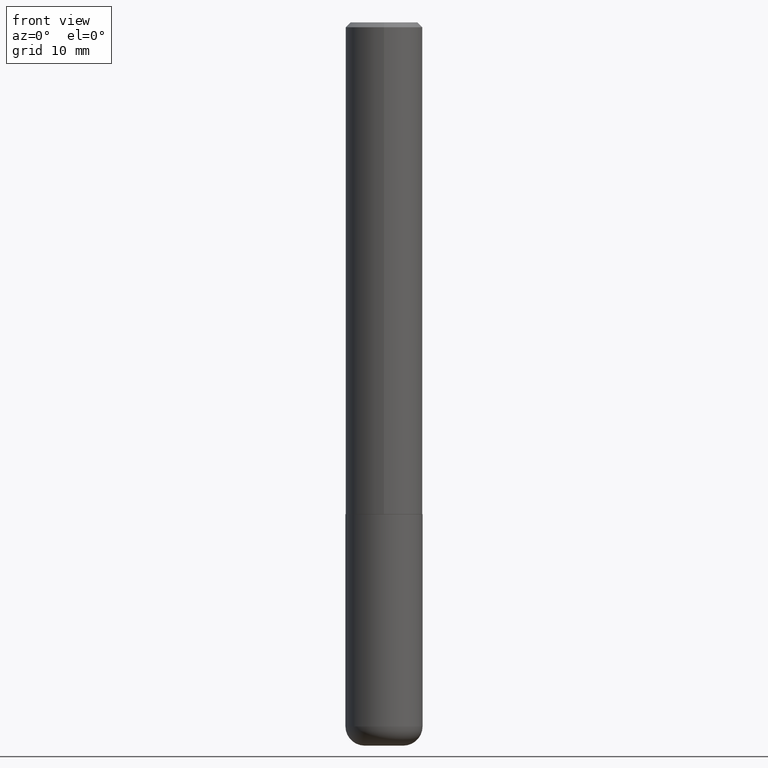
[diagram: clean part render]
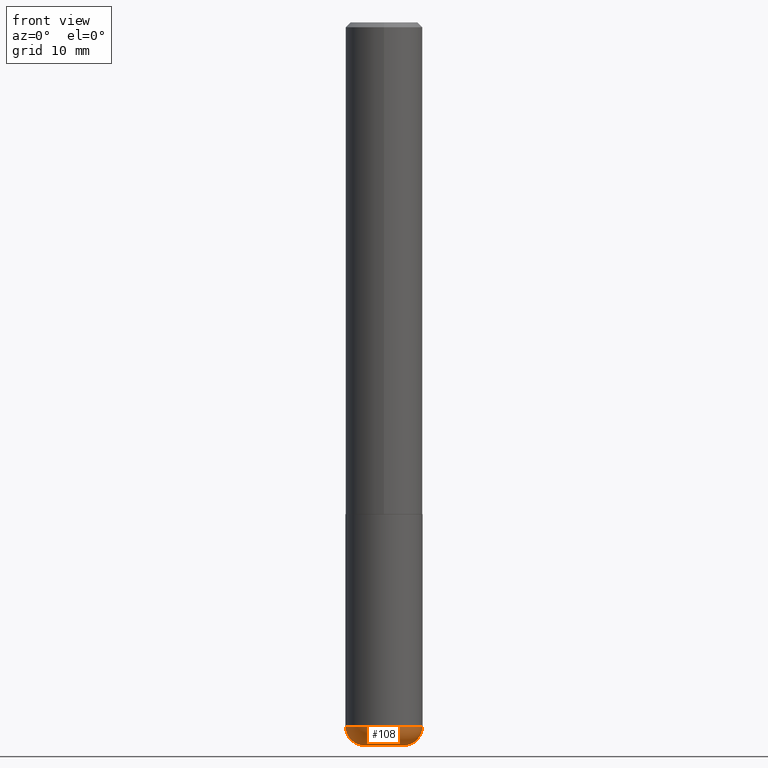
[diagram: same view with one face highlighted and labeled with its STEP entity id]
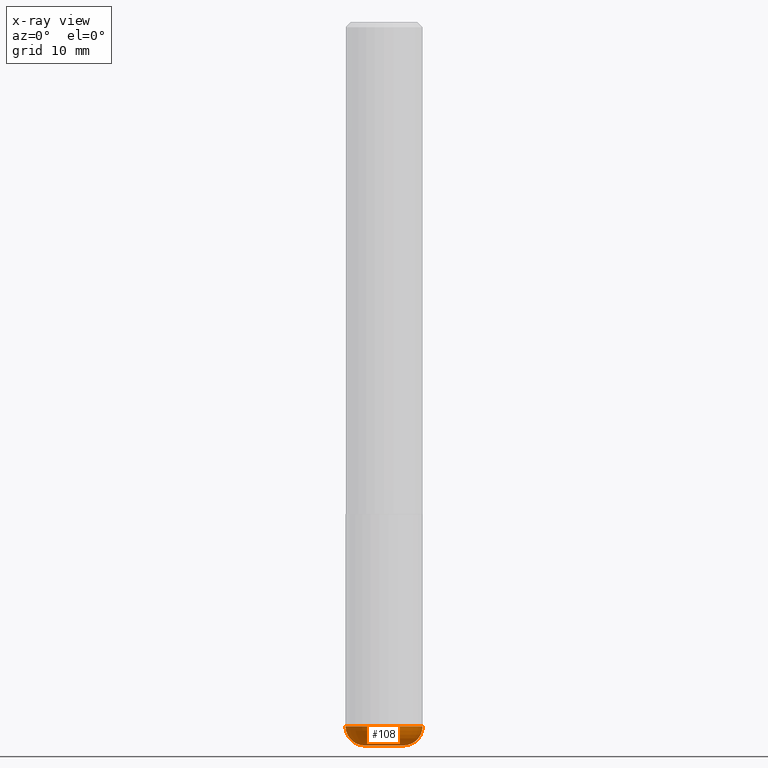
[diagram: x-ray of the same camera — body ghosted, the highlighted face saturated]
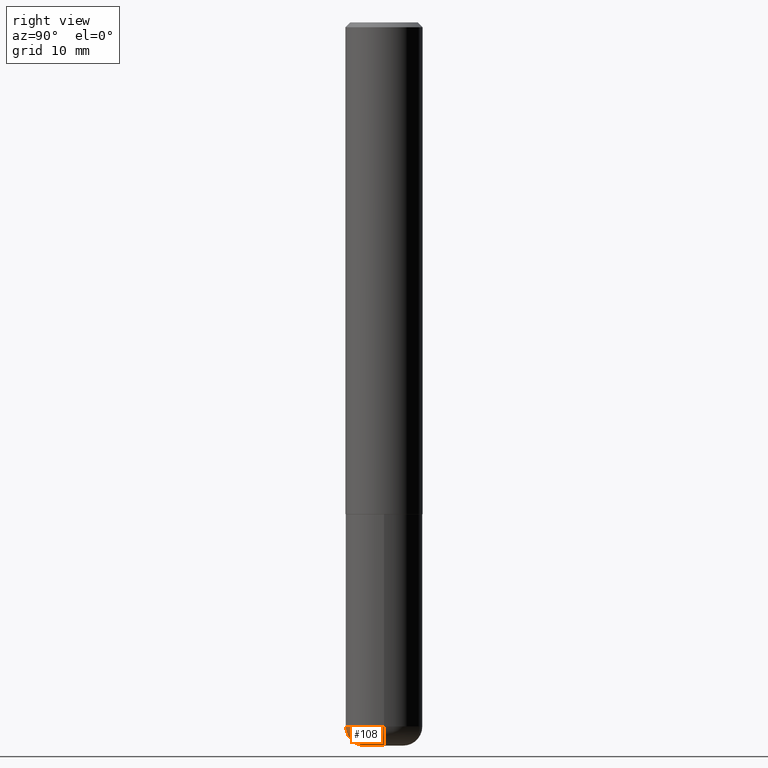
[diagram: same view with one face highlighted and labeled with its STEP entity id]
A machine part, front view. The second image highlights one B-rep face of the part: STEP entity #108.
The next image is the same camera in x-ray: the body ghosted, the highlighted face saturated — about 0% of this face is hidden behind the body in this view.
A second angle (right view) of the same face is appended — the face is thin or edge-on in the first view.
In plain terms, the highlighted toroidal blend (fillet) surface has major radius 2.0015 mm and minor (blend) radius 1.999 mm.
Its self-contained STEP definition (entity closure, byte-faithful):
#16 = EDGE_CURVE ( 'NONE', #236, #85, #343, .T. ) ;
#30 = AXIS2_PLACEMENT_3D ( 'NONE', #395, #332, #145 ) ;
#68 = AXIS2_PLACEMENT_3D ( 'NONE', #403, #117, #211 ) ;
#70 = FACE_OUTER_BOUND ( 'NONE', #209, .T. ) ;
#77 = DIRECTION ( 'NONE',  ( 7.105427357601001859E-15, 1.000000000000000000, -3.491481338843145583E-15 ) ) ;
#85 = VERTEX_POINT ( 'NONE', #385 ) ;
#100 = ORIENTED_EDGE ( 'NONE', *, *, #380, .T. ) ;
#103 = CARTESIAN_POINT ( 'NONE',  ( 7.028521895856700897E-29, -1.003486651596908519E-14, -2.874099999999999877 ) ) ;
#104 = CARTESIAN_POINT ( 'NONE',  ( 0.07879999999999999505, -1.058512397497076362E-14, -2.874099999999999877 ) ) ;
#107 = DIRECTION ( 'NONE',  ( -6.982962677686266711E-15, -1.000000000000000000, 3.491481338843145583E-15 ) ) ;
#108 = ADVANCED_FACE ( 'NONE', ( #70 ), #317, .T. ) ;
#117 = DIRECTION ( 'NONE',  ( -2.445468806185136597E-29, 3.491481338843145583E-15, 1.000000000000000000 ) ) ;
#120 = CARTESIAN_POINT ( 'NONE',  ( 0.07880000000000000893, -1.085990355633771696E-14, -2.952799999999999869 ) ) ;
#121 = AXIS2_PLACEMENT_3D ( 'NONE', #363, #77, #300 ) ;
#132 = AXIS2_PLACEMENT_3D ( 'NONE', #103, #187, #294 ) ;
#133 = CIRCLE ( 'NONE', #30, 0.07880000000000000893 ) ;
#140 = DIRECTION ( 'NONE',  ( 1.000000000000000000, -6.982962677686273021E-15, 0.000000000000000000 ) ) ;
#145 = DIRECTION ( 'NONE',  ( 1.000000000000000000, -6.982962677686277755E-15, 0.000000000000000000 ) ) ;
#151 = VERTEX_POINT ( 'NONE', #120 ) ;
#156 = ORIENTED_EDGE ( 'NONE', *, *, #16, .F. ) ;
#187 = DIRECTION ( 'NONE',  ( -2.445468806185136597E-29, 3.491481338843145583E-15, 1.000000000000000000 ) ) ;
#209 = EDGE_LOOP ( 'NONE', ( #296, #287, #100, #156 ) ) ;
#211 = DIRECTION ( 'NONE',  ( 1.000000000000000000, -6.982962677686261977E-15, 0.000000000000000000 ) ) ;
#219 = CIRCLE ( 'NONE', #350, 0.07869999999999996443 ) ;
#236 = VERTEX_POINT ( 'NONE', #373 ) ;
#287 = ORIENTED_EDGE ( 'NONE', *, *, #361, .T. ) ;
#289 = CIRCLE ( 'NONE', #121, 0.07869999999999996443 ) ;
#294 = DIRECTION ( 'NONE',  ( 1.000000000000000000, -6.982962677686263555E-15, 4.883557194083111780E-29 ) ) ;
#296 = ORIENTED_EDGE ( 'NONE', *, *, #413, .F. ) ;
#297 = CARTESIAN_POINT ( 'NONE',  ( -0.07880000000000000893, -9.332750064352005228E-15, -2.952799999999999869 ) ) ;
#300 = DIRECTION ( 'NONE',  ( -1.000000000000000000, 7.105427357600995548E-15, 0.000000000000000000 ) ) ;
#317 = TOROIDAL_SURFACE ( 'NONE', #132, 0.07879999999999999505, 0.07869999999999995055 ) ;
#332 = DIRECTION ( 'NONE',  ( -2.445468806185136597E-29, 3.491481338843145583E-15, 1.000000000000000000 ) ) ;
#343 = CIRCLE ( 'NONE', #68, 0.1575000000000000011 ) ;
#350 = AXIS2_PLACEMENT_3D ( 'NONE', #104, #107, #140 ) ;
#361 = EDGE_CURVE ( 'NONE', #406, #151, #133, .T. ) ;
#363 = CARTESIAN_POINT ( 'NONE',  ( -0.07879999999999999505, -9.474958840190126376E-15, -2.874099999999999877 ) ) ;
#373 = CARTESIAN_POINT ( 'NONE',  ( -0.1574999999999999456, -8.915761707146927585E-15, -2.874099999999999877 ) ) ;
#380 = EDGE_CURVE ( 'NONE', #151, #85, #219, .T. ) ;
#385 = CARTESIAN_POINT ( 'NONE',  ( 0.1574999999999999456, -1.113468313770467030E-14, -2.874099999999999877 ) ) ;
#395 = CARTESIAN_POINT ( 'NONE',  ( 7.220980290903470182E-29, -1.030964609733603853E-14, -2.952799999999999869 ) ) ;
#403 = CARTESIAN_POINT ( 'NONE',  ( 7.028521895856700897E-29, -1.003486651596908519E-14, -2.874099999999999877 ) ) ;
#406 = VERTEX_POINT ( 'NONE', #297 ) ;
#413 = EDGE_CURVE ( 'NONE', #406, #236, #289, .T. ) ;